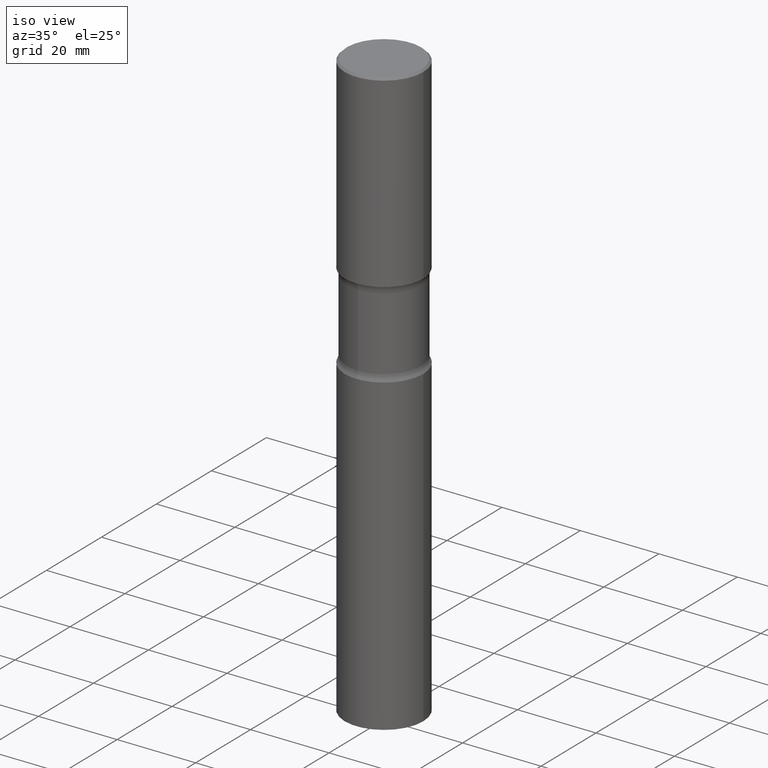
[diagram: clean part render]
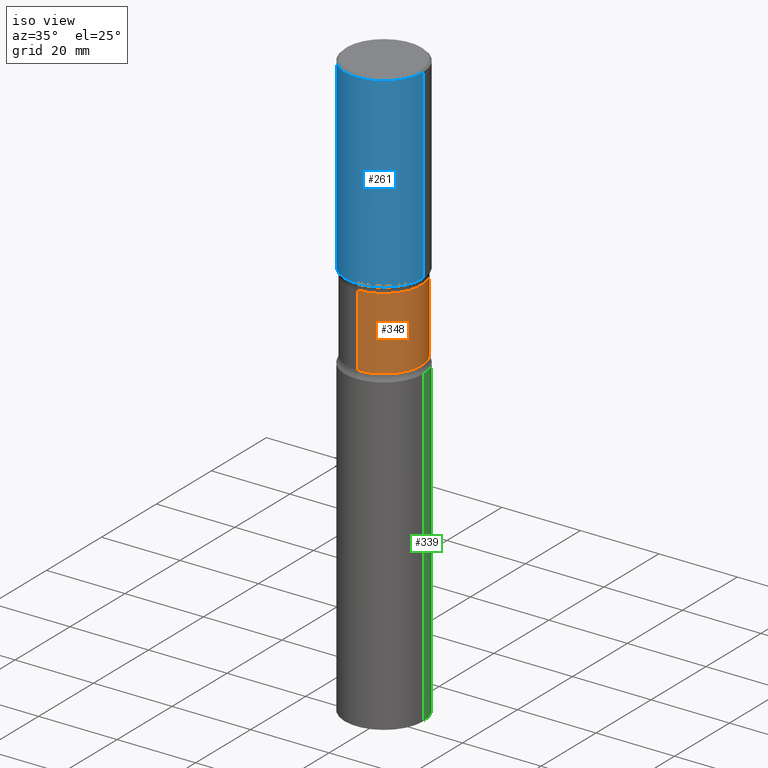
[diagram: same view with three faces highlighted in distinct colors, each labeled with its STEP entity id]
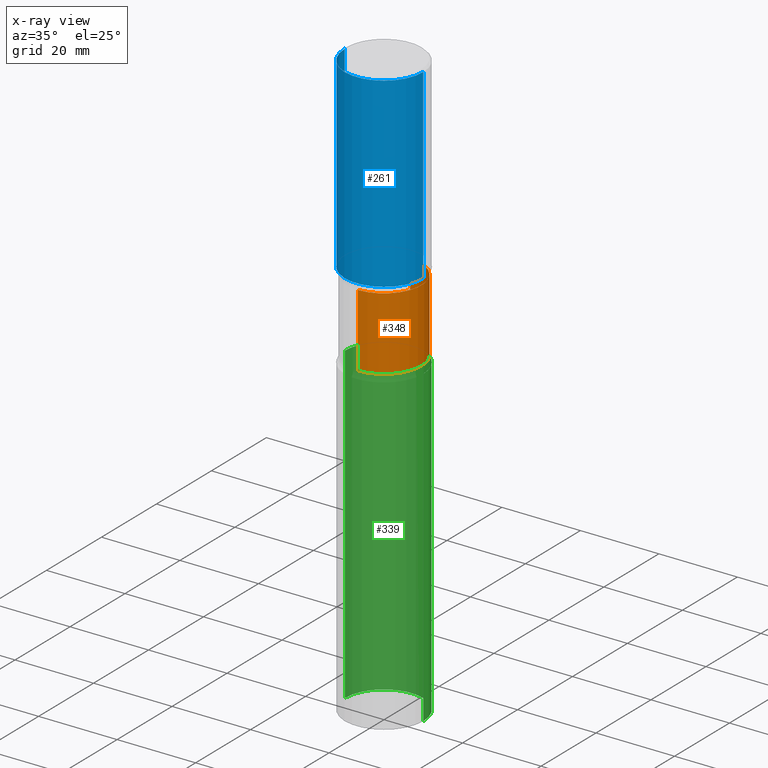
[diagram: x-ray of the same camera — body ghosted, the three highlighted faces saturated]
A machine part, iso view with three faces highlighted in distinct colors.
The next image is the same camera in x-ray (body ghosted, the three faces saturated) — at least one of them is partly hidden behind the body in this view.
Their STEP definitions:

[orange] entity #348 — the highlighted cylindrical surface (partial cylindrical patch) has radius 9.4869 mm, axis along (0, -0, -1).
#2 = CYLINDRICAL_SURFACE ( 'NONE', #32, 0.3735000000000001097 ) ;
#4 = CARTESIAN_POINT ( 'NONE',  ( 2.608136560115867538E-15, 0.3734999999999931153, -1.957931930840099755 ) ) ;
#17 = EDGE_LOOP ( 'NONE', ( #371, #189, #438, #336 ) ) ;
#32 = AXIS2_PLACEMENT_3D ( 'NONE', #395, #255, #470 ) ;
#42 = DIRECTION ( 'NONE',  ( 6.982962677686264344E-15, 1.000000000000000000, -2.925673888797067346E-15 ) ) ;
#49 = EDGE_CURVE ( 'NONE', #264, #479, #98, .T. ) ;
#76 = DIRECTION ( 'NONE',  ( 2.490894556869833898E-29, -3.426429078389494425E-15, -1.000000000000000000 ) ) ;
#98 = LINE ( 'NONE', #223, #315 ) ;
#133 = EDGE_CURVE ( 'NONE', #381, #264, #504, .T. ) ;
#146 = LINE ( 'NONE', #317, #335 ) ;
#151 = CARTESIAN_POINT ( 'NONE',  ( 2.608136560115886865E-15, 0.3734999999999908393, -2.687768069159901074 ) ) ;
#156 = AXIS2_PLACEMENT_3D ( 'NONE', #184, #175, #344 ) ;
#175 = DIRECTION ( 'NONE',  ( 2.490894556869833898E-29, -3.426429078389494425E-15, -1.000000000000000000 ) ) ;
#184 = CARTESIAN_POINT ( 'NONE',  ( 4.751813162939288428E-29, -6.887992425922019531E-15, -1.957931930840098422 ) ) ;
#186 = EDGE_CURVE ( 'NONE', #381, #286, #146, .T. ) ;
#189 = ORIENTED_EDGE ( 'NONE', *, *, #49, .T. ) ;
#196 = CIRCLE ( 'NONE', #259, 0.3735000000000002207 ) ;
#223 = CARTESIAN_POINT ( 'NONE',  ( -2.562396002167521472E-15, -0.3735000000000205378, -5.905499999999998195 ) ) ;
#255 = DIRECTION ( 'NONE',  ( 2.490894556869833898E-29, -3.426429078389494425E-15, -1.000000000000000000 ) ) ;
#258 = DIRECTION ( 'NONE',  ( 2.490894556869833898E-29, -3.426429078389494425E-15, -1.000000000000000000 ) ) ;
#259 = AXIS2_PLACEMENT_3D ( 'NONE', #394, #76, #42 ) ;
#264 = VERTEX_POINT ( 'NONE', #506 ) ;
#286 = VERTEX_POINT ( 'NONE', #151 ) ;
#296 = EDGE_CURVE ( 'NONE', #286, #479, #196, .T. ) ;
#315 = VECTOR ( 'NONE', #258, 39.37007874015748143 ) ;
#317 = CARTESIAN_POINT ( 'NONE',  ( 2.608136560115966934E-15, 0.3734999999999796816, -5.905500000000000860 ) ) ;
#323 = FACE_OUTER_BOUND ( 'NONE', #17, .T. ) ;
#333 = DIRECTION ( 'NONE',  ( 2.490894556869833898E-29, -3.426429078389494425E-15, -1.000000000000000000 ) ) ;
#335 = VECTOR ( 'NONE', #333, 39.37007874015748143 ) ;
#336 = ORIENTED_EDGE ( 'NONE', *, *, #186, .F. ) ;
#344 = DIRECTION ( 'NONE',  ( 6.982962677686265922E-15, 1.000000000000000000, -3.657092360996336056E-15 ) ) ;
#348 = ADVANCED_FACE ( 'NONE', ( #323 ), #2, .T. ) ;
#371 = ORIENTED_EDGE ( 'NONE', *, *, #133, .T. ) ;
#381 = VERTEX_POINT ( 'NONE', #4 ) ;
#394 = CARTESIAN_POINT ( 'NONE',  ( 6.569758027286980545E-29, -9.388724192720483938E-15, -2.687768069159900186 ) ) ;
#395 = CARTESIAN_POINT ( 'NONE',  ( 1.458478897928284484E-28, -2.041405444701337464E-14, -5.905499999999999972 ) ) ;
#399 = CARTESIAN_POINT ( 'NONE',  ( -2.631687031945093659E-15, -0.3735000000000095466, -2.687768069159898854 ) ) ;
#438 = ORIENTED_EDGE ( 'NONE', *, *, #296, .F. ) ;
#470 = DIRECTION ( 'NONE',  ( 6.982962677686265922E-15, 1.000000000000000000, -2.925673888797068135E-15 ) ) ;
#479 = VERTEX_POINT ( 'NONE', #399 ) ;
#504 = CIRCLE ( 'NONE', #156, 0.3734999999999999987 ) ;
#506 = CARTESIAN_POINT ( 'NONE',  ( -2.631687031945112592E-15, -0.3735000000000068821, -1.957931930840097090 ) ) ;

[blue] entity #261 — the highlighted cylindrical surface (partial cylindrical patch) has radius 10 mm, axis along (-0, 0, 1).
#1 = AXIS2_PLACEMENT_3D ( 'NONE', #354, #391, #389 ) ;
#16 = CARTESIAN_POINT ( 'NONE',  ( 0.3936999999999999389, -2.749192406205082822E-15, 1.919750796630859611E-29 ) ) ;
#31 = EDGE_CURVE ( 'NONE', #343, #201, #218, .T. ) ;
#38 = CYLINDRICAL_SURFACE ( 'NONE', #53, 0.3936999999999999389 ) ;
#41 = VECTOR ( 'NONE', #103, 39.37007874015748143 ) ;
#47 = CIRCLE ( 'NONE', #1, 0.3937000000000000499 ) ;
#53 = AXIS2_PLACEMENT_3D ( 'NONE', #116, #190, #160 ) ;
#103 = DIRECTION ( 'NONE',  ( -2.445468806185136877E-29, 3.491481338843145188E-15, 1.000000000000000000 ) ) ;
#111 = EDGE_CURVE ( 'NONE', #140, #195, #211, .T. ) ;
#115 = CIRCLE ( 'NONE', #220, 0.3936999999999998834 ) ;
#116 = CARTESIAN_POINT ( 'NONE',  ( 0.000000000000000000, 0.000000000000000000, 0.000000000000000000 ) ) ;
#132 = CARTESIAN_POINT ( 'NONE',  ( 0.3936999999999998834, -2.770807688499514550E-15, -0.02000000000000008715 ) ) ;
#140 = VERTEX_POINT ( 'NONE', #383 ) ;
#142 = CARTESIAN_POINT ( 'NONE',  ( 4.890937612370294178E-31, -6.982962677686321191E-17, -0.02000000000000008715 ) ) ;
#157 = EDGE_CURVE ( 'NONE', #201, #195, #115, .T. ) ;
#160 = DIRECTION ( 'NONE',  ( 1.000000000000000000, -6.982962677686266711E-15, 4.876176775795935793E-29 ) ) ;
#190 = DIRECTION ( 'NONE',  ( -2.445468806185136597E-29, 3.491481338843145583E-15, 1.000000000000000000 ) ) ;
#195 = VERTEX_POINT ( 'NONE', #132 ) ;
#201 = VERTEX_POINT ( 'NONE', #370 ) ;
#211 = LINE ( 'NONE', #16, #41 ) ;
#217 = ORIENTED_EDGE ( 'NONE', *, *, #254, .T. ) ;
#218 = LINE ( 'NONE', #311, #347 ) ;
#220 = AXIS2_PLACEMENT_3D ( 'NONE', #142, #314, #458 ) ;
#248 = CARTESIAN_POINT ( 'NONE',  ( -0.3937000000000000499, -5.366087797738052578E-16, -1.889799999999999924 ) ) ;
#254 = EDGE_CURVE ( 'NONE', #343, #140, #47, .T. ) ;
#256 = ORIENTED_EDGE ( 'NONE', *, *, #157, .F. ) ;
#261 = ADVANCED_FACE ( 'NONE', ( #282 ), #38, .T. ) ;
#282 = FACE_OUTER_BOUND ( 'NONE', #454, .T. ) ;
#311 = CARTESIAN_POINT ( 'NONE',  ( -0.3936999999999999389, 2.797406750687513998E-15, -1.936584745033356455E-29 ) ) ;
#314 = DIRECTION ( 'NONE',  ( -2.445468806185136597E-29, 3.491481338843145583E-15, 1.000000000000000000 ) ) ;
#341 = ORIENTED_EDGE ( 'NONE', *, *, #31, .F. ) ;
#343 = VERTEX_POINT ( 'NONE', #248 ) ;
#347 = VECTOR ( 'NONE', #413, 39.37007874015748143 ) ;
#354 = CARTESIAN_POINT ( 'NONE',  ( 4.621446949928670868E-29, -6.598201434145776001E-15, -1.889799999999999924 ) ) ;
#370 = CARTESIAN_POINT ( 'NONE',  ( -0.3936999999999998834, 2.679362779428219130E-15, -0.02000000000000008715 ) ) ;
#383 = CARTESIAN_POINT ( 'NONE',  ( 0.3937000000000000499, -9.347393840350860007E-15, -1.889799999999999924 ) ) ;
#389 = DIRECTION ( 'NONE',  ( 1.000000000000000000, -6.982962677686265133E-15, 0.000000000000000000 ) ) ;
#391 = DIRECTION ( 'NONE',  ( -2.445468806185136597E-29, 3.491481338843145583E-15, 1.000000000000000000 ) ) ;
#413 = DIRECTION ( 'NONE',  ( -2.445468806185136877E-29, 3.491481338843145188E-15, 1.000000000000000000 ) ) ;
#454 = EDGE_LOOP ( 'NONE', ( #341, #217, #492, #256 ) ) ;
#458 = DIRECTION ( 'NONE',  ( 1.000000000000000000, -6.982962677686266711E-15, 0.000000000000000000 ) ) ;
#492 = ORIENTED_EDGE ( 'NONE', *, *, #111, .T. ) ;

[green] entity #339 — the highlighted cylindrical surface (partial cylindrical patch) has radius 10 mm, axis along (-0, 0, 1).
#50 = DIRECTION ( 'NONE',  ( -2.445468806185136597E-29, 3.491481338843145583E-15, 1.000000000000000000 ) ) ;
#75 = VERTEX_POINT ( 'NONE', #453 ) ;
#82 = DIRECTION ( 'NONE',  ( -2.445468806185136597E-29, 3.491481338843145583E-15, 1.000000000000000000 ) ) ;
#89 = DIRECTION ( 'NONE',  ( -2.445468806185136877E-29, 3.491481338843145188E-15, 1.000000000000000000 ) ) ;
#107 = FACE_OUTER_BOUND ( 'NONE', #165, .T. ) ;
#109 = ORIENTED_EDGE ( 'NONE', *, *, #455, .T. ) ;
#118 = EDGE_CURVE ( 'NONE', #396, #268, #490, .T. ) ;
#125 = CARTESIAN_POINT ( 'NONE',  ( 1.444171603492632270E-28, -2.061894304653819197E-14, -5.905499999999999972 ) ) ;
#150 = ORIENTED_EDGE ( 'NONE', *, *, #397, .F. ) ;
#165 = EDGE_LOOP ( 'NONE', ( #109, #224, #150, #300 ) ) ;
#204 = LINE ( 'NONE', #439, #503 ) ;
#224 = ORIENTED_EDGE ( 'NONE', *, *, #118, .T. ) ;
#234 = CYLINDRICAL_SURFACE ( 'NONE', #472, 0.3937000000000000499 ) ;
#237 = DIRECTION ( 'NONE',  ( 1.000000000000000000, -6.982962677686265922E-15, 4.876176775795935793E-29 ) ) ;
#249 = DIRECTION ( 'NONE',  ( 1.000000000000000000, -6.982962677686267499E-15, 0.000000000000000000 ) ) ;
#268 = VERTEX_POINT ( 'NONE', #349 ) ;
#272 = CARTESIAN_POINT ( 'NONE',  ( -0.3937000000000000499, 2.797406750687514786E-15, -1.936584745033356735E-29 ) ) ;
#300 = ORIENTED_EDGE ( 'NONE', *, *, #507, .F. ) ;
#326 = CARTESIAN_POINT ( 'NONE',  ( 0.3937000000000000499, -1.237136582792290445E-14, -2.755899999999998684 ) ) ;
#329 = DIRECTION ( 'NONE',  ( 1.000000000000000000, -6.982962677686267499E-15, 0.000000000000000000 ) ) ;
#339 = ADVANCED_FACE ( 'NONE', ( #107 ), #234, .T. ) ;
#346 = AXIS2_PLACEMENT_3D ( 'NONE', #508, #82, #249 ) ;
#349 = CARTESIAN_POINT ( 'NONE',  ( -0.3937000000000000499, -1.232315148344049260E-14, -2.755899999999998684 ) ) ;
#359 = AXIS2_PLACEMENT_3D ( 'NONE', #125, #50, #329 ) ;
#363 = CARTESIAN_POINT ( 'NONE',  ( -0.3937000000000000499, -1.232315148344049260E-14, -5.905499999999999972 ) ) ;
#377 = VECTOR ( 'NONE', #493, 39.37007874015748143 ) ;
#387 = CARTESIAN_POINT ( 'NONE',  ( 0.000000000000000000, 0.000000000000000000, 0.000000000000000000 ) ) ;
#396 = VERTEX_POINT ( 'NONE', #363 ) ;
#397 = EDGE_CURVE ( 'NONE', #465, #268, #437, .T. ) ;
#437 = CIRCLE ( 'NONE', #346, 0.3937000000000000499 ) ;
#439 = CARTESIAN_POINT ( 'NONE',  ( 0.3937000000000000499, -2.749192406205083217E-15, 1.919750796630860172E-29 ) ) ;
#445 = CIRCLE ( 'NONE', #359, 0.3937000000000000499 ) ;
#453 = CARTESIAN_POINT ( 'NONE',  ( 0.3937000000000000499, -2.336813545274327834E-14, -5.905499999999999972 ) ) ;
#455 = EDGE_CURVE ( 'NONE', #75, #396, #445, .T. ) ;
#465 = VERTEX_POINT ( 'NONE', #326 ) ;
#466 = DIRECTION ( 'NONE',  ( -2.445468806185136597E-29, 3.491481338843145583E-15, 1.000000000000000000 ) ) ;
#472 = AXIS2_PLACEMENT_3D ( 'NONE', #387, #466, #237 ) ;
#490 = LINE ( 'NONE', #272, #377 ) ;
#493 = DIRECTION ( 'NONE',  ( -2.445468806185136877E-29, 3.491481338843145188E-15, 1.000000000000000000 ) ) ;
#503 = VECTOR ( 'NONE', #89, 39.37007874015748143 ) ;
#507 = EDGE_CURVE ( 'NONE', #75, #465, #204, .T. ) ;
#508 = CARTESIAN_POINT ( 'NONE',  ( 6.739467482965615990E-29, -9.622173421717821235E-15, -2.755899999999998684 ) ) ;